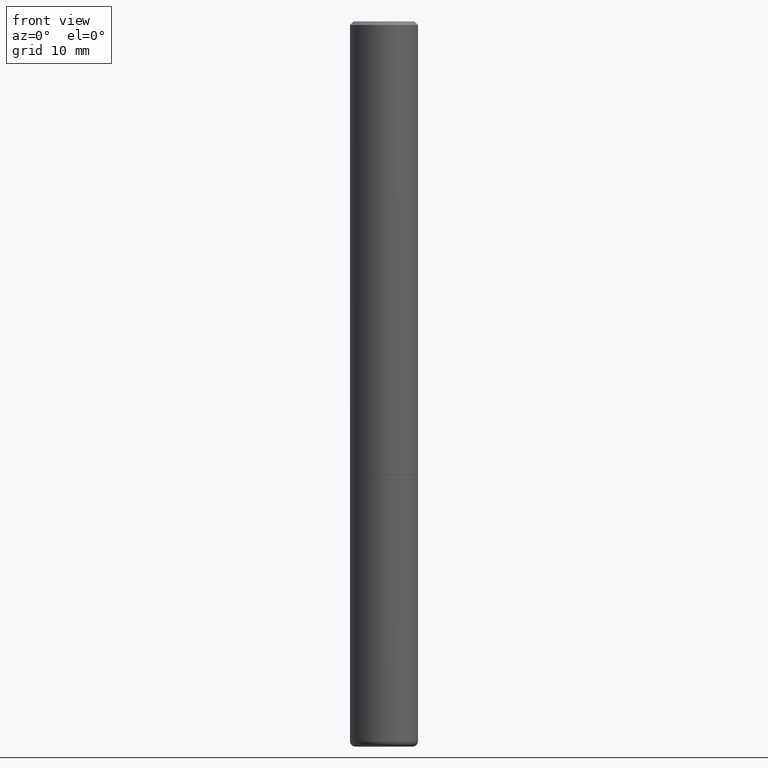
[diagram: clean part render]
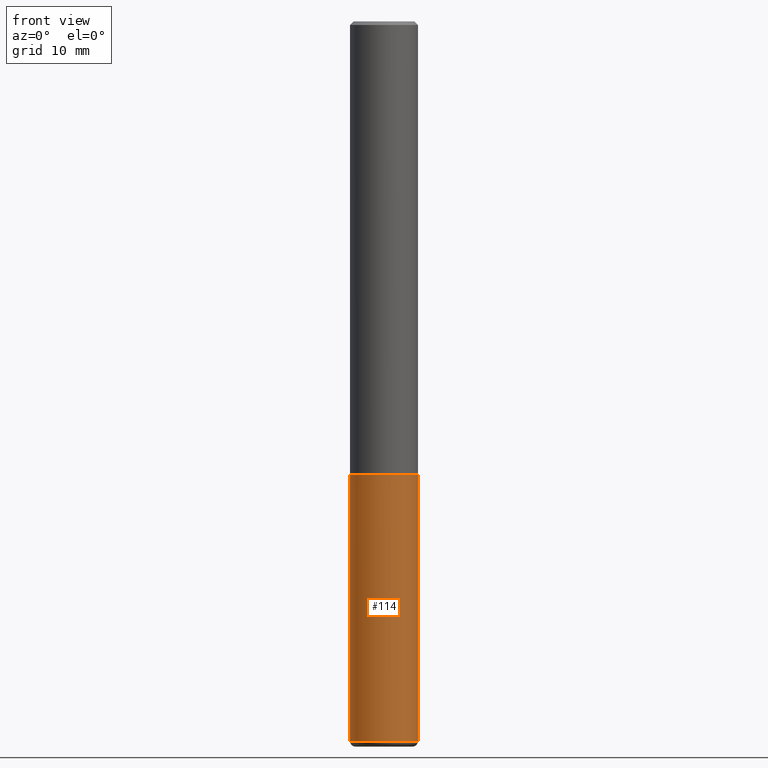
[diagram: same view with one face highlighted and labeled with its STEP entity id]
A machine part, front view. The second image highlights one B-rep face of the part: STEP entity #114.
In plain terms, the highlighted cylindrical surface (edge-blend (fillet) strip) has radius 4.7625 mm, axis along (-0, 0, 1).
Its self-contained STEP definition (entity closure, byte-faithful):
#6 = VERTEX_POINT ( 'NONE', #159 ) ;
#20 = VERTEX_POINT ( 'NONE', #261 ) ;
#24 = CYLINDRICAL_SURFACE ( 'NONE', #263, 0.1875000000000000278 ) ;
#42 = CIRCLE ( 'NONE', #380, 0.1875000000000000278 ) ;
#48 = CARTESIAN_POINT ( 'NONE',  ( -0.1875000000000000278, -9.962674501607386737E-15, -2.500000000000000000 ) ) ;
#60 = ORIENTED_EDGE ( 'NONE', *, *, #284, .F. ) ;
#68 = DIRECTION ( 'NONE',  ( -2.445468806185136597E-29, 3.491481338843145583E-15, 1.000000000000000000 ) ) ;
#69 = ORIENTED_EDGE ( 'NONE', *, *, #90, .F. ) ;
#75 = DIRECTION ( 'NONE',  ( -2.445468806185136877E-29, 3.491481338843145188E-15, 1.000000000000000000 ) ) ;
#88 = CARTESIAN_POINT ( 'NONE',  ( 0.000000000000000000, 0.000000000000000000, 0.000000000000000000 ) ) ;
#90 = EDGE_CURVE ( 'NONE', #233, #20, #105, .T. ) ;
#94 = DIRECTION ( 'NONE',  ( 1.000000000000000000, -6.982962677686266711E-15, 0.000000000000000000 ) ) ;
#102 = CARTESIAN_POINT ( 'NONE',  ( -0.1875000000000000278, 1.332267629550188046E-15, -9.223003294227947991E-30 ) ) ;
#105 = CIRCLE ( 'NONE', #286, 0.1875000000000000278 ) ;
#114 = ADVANCED_FACE ( 'NONE', ( #391 ), #24, .T. ) ;
#118 = DIRECTION ( 'NONE',  ( -2.445468806185136597E-29, 3.491481338843145583E-15, 1.000000000000000000 ) ) ;
#122 = CARTESIAN_POINT ( 'NONE',  ( -0.1875000000000000278, -1.252891328565709953E-14, -3.969999999999999307 ) ) ;
#145 = DIRECTION ( 'NONE',  ( 1.000000000000000000, -6.982962677686265922E-15, 4.876176775795935793E-29 ) ) ;
#159 = CARTESIAN_POINT ( 'NONE',  ( 0.1875000000000000278, -1.517048641727346081E-14, -3.969999999999999307 ) ) ;
#164 = VECTOR ( 'NONE', #183, 39.37007874015748143 ) ;
#183 = DIRECTION ( 'NONE',  ( -2.445468806185136877E-29, 3.491481338843145188E-15, 1.000000000000000000 ) ) ;
#196 = EDGE_LOOP ( 'NONE', ( #60, #396, #267, #69 ) ) ;
#201 = EDGE_CURVE ( 'NONE', #430, #6, #42, .T. ) ;
#213 = DIRECTION ( 'NONE',  ( -2.445468806185136597E-29, 3.491481338843145583E-15, 1.000000000000000000 ) ) ;
#233 = VERTEX_POINT ( 'NONE', #48 ) ;
#261 = CARTESIAN_POINT ( 'NONE',  ( 0.1875000000000000278, -1.003800884917403995E-14, -2.500000000000000000 ) ) ;
#263 = AXIS2_PLACEMENT_3D ( 'NONE', #88, #68, #145 ) ;
#267 = ORIENTED_EDGE ( 'NONE', *, *, #360, .T. ) ;
#284 = EDGE_CURVE ( 'NONE', #430, #233, #402, .T. ) ;
#286 = AXIS2_PLACEMENT_3D ( 'NONE', #356, #118, #94 ) ;
#347 = CARTESIAN_POINT ( 'NONE',  ( 9.708511160554990630E-29, -1.386118091520728581E-14, -3.969999999999999307 ) ) ;
#349 = DIRECTION ( 'NONE',  ( 1.000000000000000000, -6.982962677686261189E-15, 0.000000000000000000 ) ) ;
#356 = CARTESIAN_POINT ( 'NONE',  ( 6.113672015462842613E-29, -8.728703347107864943E-15, -2.500000000000000000 ) ) ;
#360 = EDGE_CURVE ( 'NONE', #6, #20, #435, .T. ) ;
#364 = CARTESIAN_POINT ( 'NONE',  ( 0.1875000000000000278, -1.309305502066175008E-15, 9.142831454617381013E-30 ) ) ;
#380 = AXIS2_PLACEMENT_3D ( 'NONE', #347, #213, #349 ) ;
#391 = FACE_OUTER_BOUND ( 'NONE', #196, .T. ) ;
#396 = ORIENTED_EDGE ( 'NONE', *, *, #201, .T. ) ;
#402 = LINE ( 'NONE', #102, #420 ) ;
#420 = VECTOR ( 'NONE', #75, 39.37007874015748143 ) ;
#430 = VERTEX_POINT ( 'NONE', #122 ) ;
#435 = LINE ( 'NONE', #364, #164 ) ;